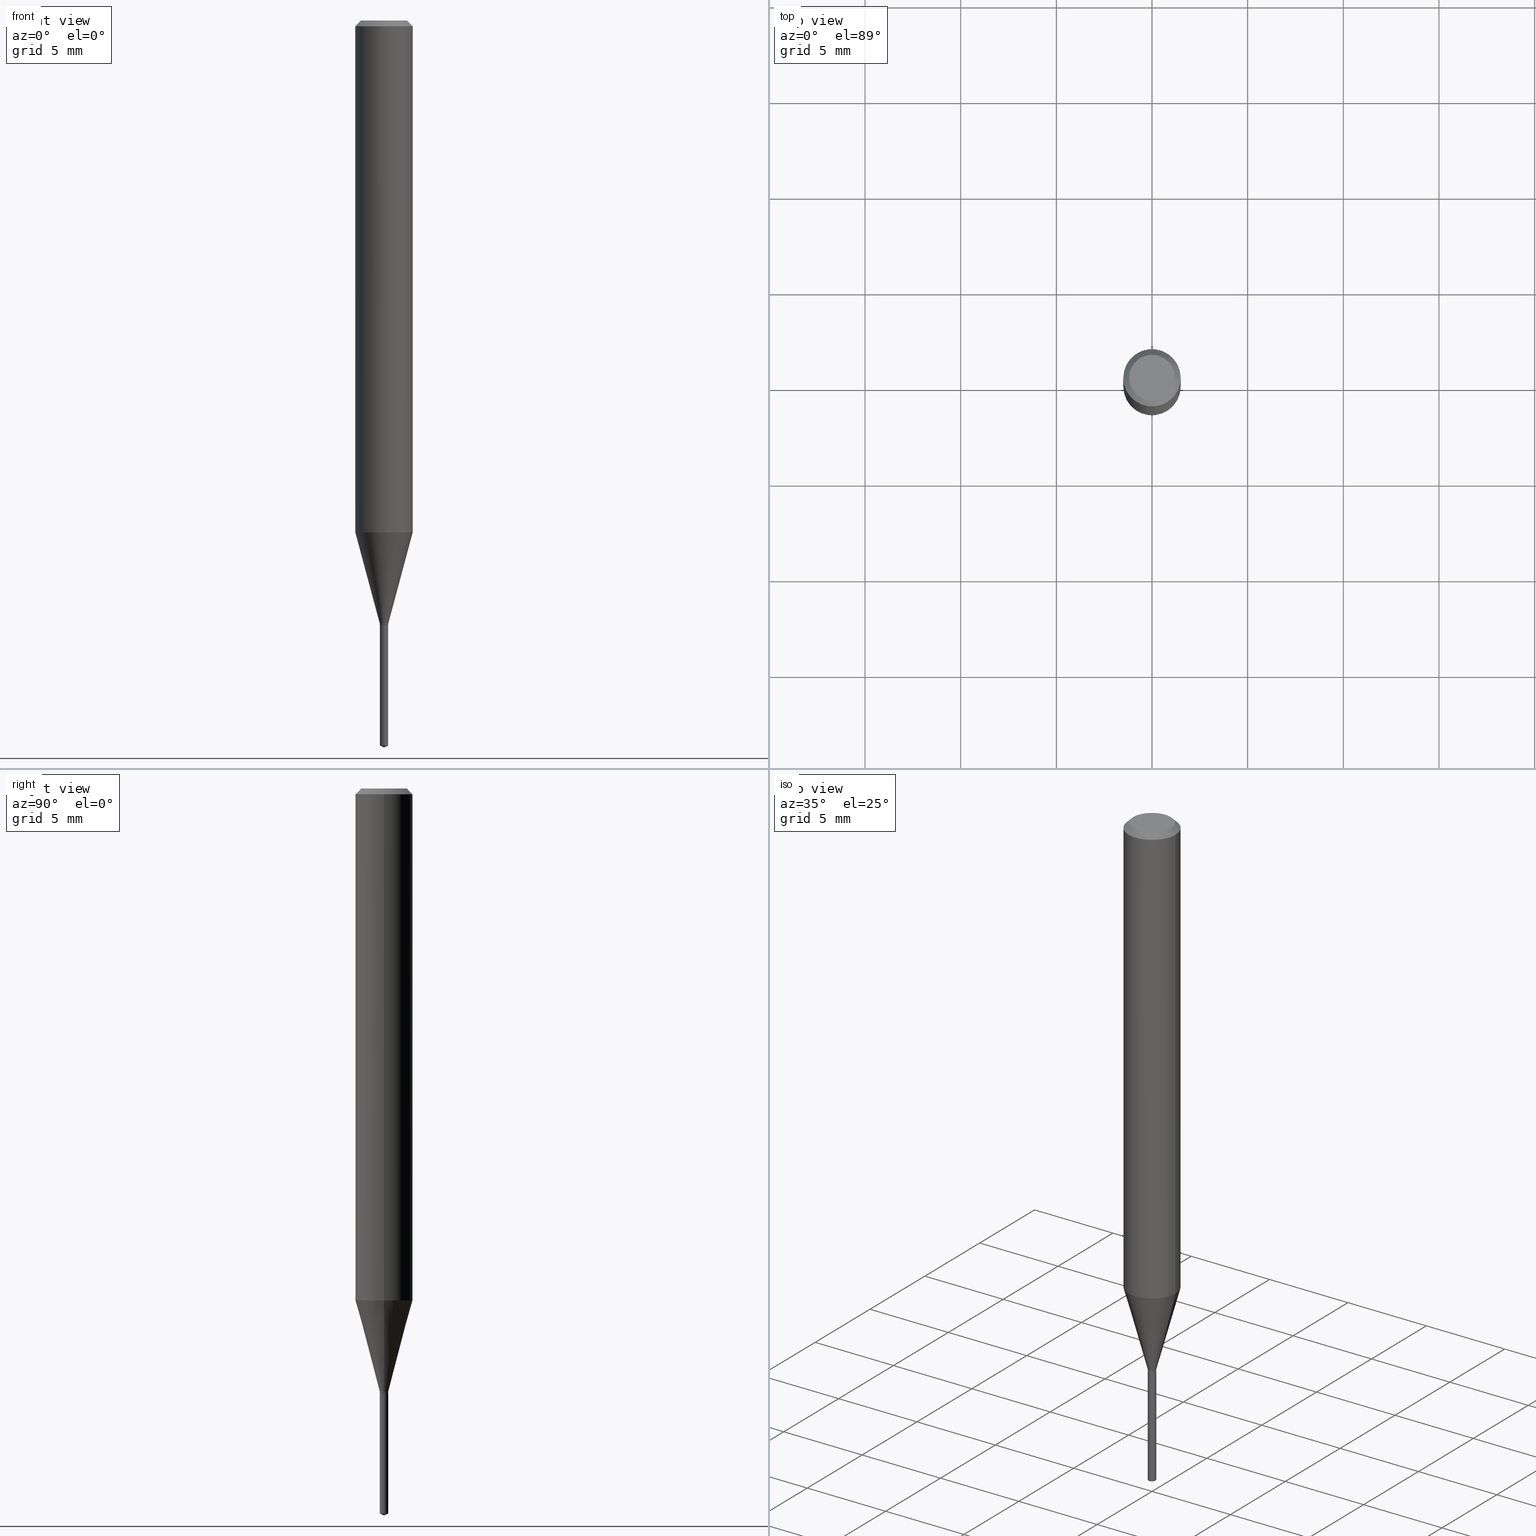
[diagram: canonical four-view strip — front | top / right | iso, engineering-drawing reading convention]
A machine part, canonical four-view strip (front | top / right | iso — engineering-drawing reading convention). The complete STEP part file that produces these views, byte-faithful:
ISO-10303-21;
HEADER;
FILE_DESCRIPTION (( 'STEP AP203' ),
    '1' );
FILE_NAME ('07419.STEP',
    '2024-04-23T21:14:50',
    ( '' ),
    ( '' ),
    'SwSTEP 2.0',
    'SolidWorks 2023',
    '' );
FILE_SCHEMA (( 'CONFIG_CONTROL_DESIGN' ));
ENDSEC;

DATA;
#1 = DIRECTION ( 'NONE',  ( 1.000000000000000000, -6.982962677686266711E-15, 0.000000000000000000 ) ) ;
#2 = LINE ( 'NONE', #423, #140 ) ;
#3 = ORIENTED_EDGE ( 'NONE', *, *, #326, .T. ) ;
#4 = CC_DESIGN_DATE_AND_TIME_ASSIGNMENT ( #94, #442, ( #283 ) ) ;
#5 = DIRECTION ( 'NONE',  ( 1.000000000000000000, -6.982962677686226479E-15, 0.000000000000000000 ) ) ;
#6 = AXIS2_PLACEMENT_3D ( 'NONE', #51, #431, #156 ) ;
#7 = PLANE ( 'NONE',  #299 ) ;
#8 = PLANE ( 'NONE',  #183 ) ;
#9 = MANIFOLD_SOLID_BREP ( 'Body-Move/Copy2[1]', #392 ) ;
#10 = DIRECTION ( 'NONE',  ( -1.000000000000000000, 6.982962677686266711E-15, 0.000000000000000000 ) ) ;
#11 = DIRECTION ( 'NONE',  ( 1.000000000000000000, -6.982962677686220957E-15, 0.000000000000000000 ) ) ;
#12 = DIRECTION ( 'NONE',  ( -0.7071067811866191821, 7.493145998870612907E-15, 0.7071067811864758523 ) ) ;
#13 = APPLICATION_CONTEXT ( 'configuration controlled 3d designs of mechanical parts and assemblies' ) ;
#14 = ORIENTED_EDGE ( 'NONE', *, *, #390, .F. ) ;
#15 = DIRECTION ( 'NONE',  ( -2.445468806185136877E-29, 3.491481338843145188E-15, 1.000000000000000000 ) ) ;
#16 = CIRCLE ( 'NONE', #6, 0.008149999999999999259 ) ;
#17 = AXIS2_PLACEMENT_3D ( 'NONE', #22, #134, #168 ) ;
#18 = VERTEX_POINT ( 'NONE', #365 ) ;
#19 = APPLICATION_PROTOCOL_DEFINITION ( 'international standard', 'config_control_design', 1994, #187 ) ;
#20 = APPROVAL_ROLE ( '' ) ;
#21 = VECTOR ( 'NONE', #234, 39.37007874015748143 ) ;
#22 = CARTESIAN_POINT ( 'NONE',  ( 0.000000000000000000, 0.000000000000000000, 0.000000000000000000 ) ) ;
#23 = DIRECTION ( 'NONE',  ( 1.000000000000000000, -6.982962677686220957E-15, 0.000000000000000000 ) ) ;
#24 = ADVANCED_FACE ( 'NONE', ( #257 ), #27, .T. ) ;
#25 = ORIENTED_EDGE ( 'NONE', *, *, #112, .T. ) ;
#26 = CONICAL_SURFACE ( 'NONE', #261, 0.05904999999999999832, 0.7853981633974452814 ) ;
#27 = CYLINDRICAL_SURFACE ( 'NONE', #244, 0.008650000000000001438 ) ;
#28 = CALENDAR_DATE ( 2024, 23, 4 ) ;
#29 = ORIENTED_EDGE ( 'NONE', *, *, #92, .F. ) ;
#30 = EDGE_CURVE ( 'NONE', #188, #321, #433, .T. ) ;
#31 = DIRECTION ( 'NONE',  ( -2.445468806185136597E-29, 3.491481338843145583E-15, 1.000000000000000000 ) ) ;
#32 = PERSON_AND_ORGANIZATION ( #322, #438 ) ;
#33 = PLANE ( 'NONE',  #292 ) ;
#34 = ORIENTED_EDGE ( 'NONE', *, *, #247, .T. ) ;
#35 = DIRECTION ( 'NONE',  ( -2.433949354103485076E-29, 3.507977849870565923E-15, 1.000000000000000000 ) ) ;
#36 = DIRECTION ( 'NONE',  ( -6.982962677686266711E-15, -1.000000000000000000, 0.000000000000000000 ) ) ;
#37 = CIRCLE ( 'NONE', #48, 0.05904999999999999832 ) ;
#38 = ORIENTED_EDGE ( 'NONE', *, *, #272, .F. ) ;
#39 = LINE ( 'NONE', #336, #470 ) ;
#40 = ADVANCED_BREP_SHAPE_REPRESENTATION ( '07419', ( #9, #327, #17 ), #224 ) ;
#41 = EDGE_LOOP ( 'NONE', ( #38, #415, #65, #110 ) ) ;
#42 = FACE_OUTER_BOUND ( 'NONE', #476, .T. ) ;
#43 = CARTESIAN_POINT ( 'NONE',  ( 0.05904999999999999832, -4.535783407291118600E-16, -0.01181000000000007218 ) ) ;
#44 = EDGE_CURVE ( 'NONE', #288, #135, #437, .T. ) ;
#45 = CARTESIAN_POINT ( 'NONE',  ( 3.670345667395058439E-29, -5.207239042452925869E-15, -1.496099999999999985 ) ) ;
#46 = DIRECTION ( 'NONE',  ( 1.000000000000000000, -6.982962677686226479E-15, 0.000000000000000000 ) ) ;
#47 = CARTESIAN_POINT ( 'NONE',  ( 0.008649999999999999703, -4.402408820147322827E-15, -1.243600000000000039 ) ) ;
#48 = AXIS2_PLACEMENT_3D ( 'NONE', #185, #194, #1 ) ;
#49 = DIRECTION ( 'NONE',  ( 2.445468806185136597E-29, -3.491481338843145583E-15, -1.000000000000000000 ) ) ;
#50 = VECTOR ( 'NONE', #114, 39.37007874015748143 ) ;
#51 = CARTESIAN_POINT ( 'NONE',  ( 3.042407741774928155E-29, -4.343751933654757151E-15, -1.244099999999999984 ) ) ;
#52 = EDGE_CURVE ( 'NONE', #135, #288, #473, .T. ) ;
#53 = LINE ( 'NONE', #190, #128 ) ;
#54 = CYLINDRICAL_SURFACE ( 'NONE', #434, 0.05905000000000006771 ) ;
#55 = PERSON_AND_ORGANIZATION ( #322, #438 ) ;
#56 = DIMENSIONAL_EXPONENTS ( 1.000000000000000000, 0.000000000000000000, 0.000000000000000000, 0.000000000000000000, 0.000000000000000000, 0.000000000000000000, 0.000000000000000000 ) ;
#57 = DIRECTION ( 'NONE',  ( 1.000000000000000000, -6.982962677686226479E-15, 0.000000000000000000 ) ) ;
#58 = ORIENTED_EDGE ( 'NONE', *, *, #157, .F. ) ;
#59 = DATE_TIME_ROLE ( 'classification_date' ) ;
#60 = VERTEX_POINT ( 'NONE', #181 ) ;
#61 = CONICAL_SURFACE ( 'NONE', #207, 0.008649999999999999703, 0.2617993877991500740 ) ;
#62 = APPROVAL_PERSON_ORGANIZATION ( #90, #362, #20 ) ;
#63 = EDGE_CURVE ( 'NONE', #451, #60, #105, .T. ) ;
#64 = DIRECTION ( 'NONE',  ( 1.000000000000000000, -6.982962677686265133E-15, 0.000000000000000000 ) ) ;
#65 = ORIENTED_EDGE ( 'NONE', *, *, #471, .T. ) ;
#66 = APPROVAL_ROLE ( '' ) ;
#67 = EDGE_CURVE ( 'NONE', #154, #332, #385, .T. ) ;
#68 = ORIENTED_EDGE ( 'NONE', *, *, #67, .T. ) ;
#69 = ORIENTED_EDGE ( 'NONE', *, *, #96, .F. ) ;
#70 = DATE_AND_TIME ( #482, #106 ) ;
#71 = VERTEX_POINT ( 'NONE', #141 ) ;
#72 = ORIENTED_EDGE ( 'NONE', *, *, #456, .T. ) ;
#73 = ORIENTED_EDGE ( 'NONE', *, *, #136, .F. ) ;
#74 = LINE ( 'NONE', #119, #279 ) ;
#75 = AXIS2_PLACEMENT_3D ( 'NONE', #86, #303, #78 ) ;
#76 = EDGE_LOOP ( 'NONE', ( #450, #337, #311, #179 ) ) ;
#77 = AXIS2_PLACEMENT_3D ( 'NONE', #258, #376, #294 ) ;
#78 = DIRECTION ( 'NONE',  ( 1.000000000000000000, -6.982962677686266711E-15, 4.876176775795935793E-29 ) ) ;
#79 = LINE ( 'NONE', #340, #132 ) ;
#80 = ADVANCED_FACE ( 'NONE', ( #102 ), #98, .T. ) ;
#81 = CARTESIAN_POINT ( 'NONE',  ( 0.000000000000000000, 0.000000000000000000, 0.000000000000000000 ) ) ;
#82 = FACE_OUTER_BOUND ( 'NONE', #129, .T. ) ;
#83 = DIRECTION ( 'NONE',  ( 1.000000000000000000, -6.982962677686220957E-15, 0.000000000000000000 ) ) ;
#84 = DIRECTION ( 'NONE',  ( -2.445468806185136597E-29, 3.491481338843145583E-15, 1.000000000000000000 ) ) ;
#85 = EDGE_CURVE ( 'NONE', #250, #489, #126, .T. ) ;
#86 = CARTESIAN_POINT ( 'NONE',  ( 0.000000000000000000, 0.000000000000000000, 0.000000000000000000 ) ) ;
#87 = AXIS2_PLACEMENT_3D ( 'NONE', #425, #297, #83 ) ;
#88 = FACE_OUTER_BOUND ( 'NONE', #318, .T. ) ;
#89 = CARTESIAN_POINT ( 'NONE',  ( -0.008649999999999999703, -4.276878190936301888E-15, -1.243600000000000039 ) ) ;
#90 = PERSON_AND_ORGANIZATION ( #322, #438 ) ;
#91 = AXIS2_PLACEMENT_3D ( 'NONE', #237, #162, #469 ) ;
#92 = EDGE_CURVE ( 'NONE', #188, #154, #142, .T. ) ;
#93 = APPROVAL_STATUS ( 'not_yet_approved' ) ;
#94 = DATE_AND_TIME ( #170, #446 ) ;
#95 = DATE_AND_TIME ( #28, #309 ) ;
#96 = EDGE_CURVE ( 'NONE', #277, #71, #16, .T. ) ;
#97 = CARTESIAN_POINT ( 'NONE',  ( 0.008149999999999999259, -4.400663079477900534E-15, -1.244099999999999984 ) ) ;
#98 = CONICAL_SURFACE ( 'NONE', #454, 0.008149999999999999259, 0.7853981633975496424 ) ;
#99 = CC_DESIGN_APPROVAL ( #362, ( #146 ) ) ;
#100 = ORIENTED_EDGE ( 'NONE', *, *, #165, .T. ) ;
#101 = DIRECTION ( 'NONE',  ( -2.433949354103485076E-29, 3.507977849870565923E-15, 1.000000000000000000 ) ) ;
#102 = FACE_OUTER_BOUND ( 'NONE', #76, .T. ) ;
#103 = ORIENTED_EDGE ( 'NONE', *, *, #121, .T. ) ;
#104 = VERTEX_POINT ( 'NONE', #461 ) ;
#105 = CIRCLE ( 'NONE', #445, 0.05904999999999999832 ) ;
#106 = LOCAL_TIME ( 17, 14, 50.00000000000000000, #180 ) ;
#107 = ORIENTED_EDGE ( 'NONE', *, *, #436, .T. ) ;
#108 = ORIENTED_EDGE ( 'NONE', *, *, #449, .T. ) ;
#109 = ORIENTED_EDGE ( 'NONE', *, *, #52, .T. ) ;
#110 = ORIENTED_EDGE ( 'NONE', *, *, #44, .F. ) ;
#111 = FACE_OUTER_BOUND ( 'NONE', #147, .T. ) ;
#112 = EDGE_CURVE ( 'NONE', #135, #377, #113, .T. ) ;
#113 = LINE ( 'NONE', #300, #115 ) ;
#114 = DIRECTION ( 'NONE',  ( -2.445468806185136877E-29, 3.491481338843145188E-15, 1.000000000000000000 ) ) ;
#115 = VECTOR ( 'NONE', #341, 39.37007874015748143 ) ;
#116 = AXIS2_PLACEMENT_3D ( 'NONE', #160, #49, #10 ) ;
#117 = DIRECTION ( 'NONE',  ( -2.445468806185136597E-29, 3.491481338843145583E-15, 1.000000000000000000 ) ) ;
#118 = CARTESIAN_POINT ( 'NONE',  ( 6.146194664328519809E-17, 0.008649999999995657690, -1.244099999999999984 ) ) ;
#119 = CARTESIAN_POINT ( 'NONE',  ( 6.146194664327909674E-17, 0.008649999999995657690, -1.244099999999999984 ) ) ;
#120 = DIRECTION ( 'NONE',  ( -2.445468806185136877E-29, 3.491481338843145188E-15, 1.000000000000000000 ) ) ;
#121 = EDGE_CURVE ( 'NONE', #447, #321, #464, .T. ) ;
#122 = DIRECTION ( 'NONE',  ( -2.438088387897960049E-29, 3.491481338843145188E-15, 1.000000000000000000 ) ) ;
#123 = DIRECTION ( 'NONE',  ( -6.982962677686265133E-15, -1.000000000000000000, 0.000000000000000000 ) ) ;
#124 = AXIS2_PLACEMENT_3D ( 'NONE', #480, #31, #254 ) ;
#125 = CARTESIAN_POINT ( 'NONE',  ( 0.008649999999999999703, -4.395076709335750145E-15, -1.241499999999999826 ) ) ;
#126 = CIRCLE ( 'NONE', #251, 0.05905000000000013016 ) ;
#127 = DIRECTION ( 'NONE',  ( -2.433949354103485076E-29, 3.507977849870565923E-15, 1.000000000000000000 ) ) ;
#128 = VECTOR ( 'NONE', #15, 39.37007874015748143 ) ;
#129 = EDGE_LOOP ( 'NONE', ( #256, #108, #354, #368 ) ) ;
#130 = COORDINATED_UNIVERSAL_TIME_OFFSET ( 5, 0, .BEHIND. ) ;
#131 = APPROVAL ( #93, 'UNSPECIFIED' ) ;
#132 = VECTOR ( 'NONE', #120, 39.37007874015748143 ) ;
#133 = CC_DESIGN_APPROVAL ( #131, ( #283 ) ) ;
#134 = DIRECTION ( 'NONE',  ( 0.000000000000000000, 0.000000000000000000, 1.000000000000000000 ) ) ;
#135 = VERTEX_POINT ( 'NONE', #47 ) ;
#136 = EDGE_CURVE ( 'NONE', #321, #332, #74, .T. ) ;
#137 = EDGE_LOOP ( 'NONE', ( #145, #107, #371 ) ) ;
#138 = EDGE_LOOP ( 'NONE', ( #144, #404, #316, #331 ) ) ;
#139 = CONICAL_SURFACE ( 'NONE', #192, 84.42940631927376671, 1.134464013796313342 ) ;
#140 = VECTOR ( 'NONE', #227, 39.37007874015747433 ) ;
#141 = CARTESIAN_POINT ( 'NONE',  ( 0.008149999999999999259, -4.400663079477900534E-15, -1.244099999999999984 ) ) ;
#142 = LINE ( 'NONE', #287, #153 ) ;
#143 = CALENDAR_DATE ( 2024, 23, 4 ) ;
#144 = ORIENTED_EDGE ( 'NONE', *, *, #165, .F. ) ;
#145 = ORIENTED_EDGE ( 'NONE', *, *, #121, .F. ) ;
#146 = PRODUCT_DEFINITION_FORMATION_WITH_SPECIFIED_SOURCE ( 'ANY', '', #315, .NOT_KNOWN. ) ;
#147 = EDGE_LOOP ( 'NONE', ( #177, #103, #212 ) ) ;
#148 = ADVANCED_FACE ( 'NONE', ( #269 ), #150, .T. ) ;
#149 = ORIENTED_EDGE ( 'NONE', *, *, #199, .F. ) ;
#150 = CYLINDRICAL_SURFACE ( 'NONE', #75, 0.008649999999999999703 ) ;
#151 = FACE_OUTER_BOUND ( 'NONE', #41, .T. ) ;
#152 = DIRECTION ( 'NONE',  ( -2.445468806185136597E-29, 3.491481338843145583E-15, 1.000000000000000000 ) ) ;
#153 = VECTOR ( 'NONE', #448, 39.37007874015748143 ) ;
#154 = VERTEX_POINT ( 'NONE', #189 ) ;
#155 = CIRCLE ( 'NONE', #353, 0.008649999999999999703 ) ;
#156 = DIRECTION ( 'NONE',  ( 1.000000000000000000, -6.982962677686220957E-15, 0.000000000000000000 ) ) ;
#157 = EDGE_CURVE ( 'NONE', #60, #451, #37, .T. ) ;
#158 = CARTESIAN_POINT ( 'NONE',  ( 3.042407741774928155E-29, -4.343751933654757151E-15, -1.244099999999999984 ) ) ;
#159 = FACE_OUTER_BOUND ( 'NONE', #367, .T. ) ;
#160 = CARTESIAN_POINT ( 'NONE',  ( 2.888098660104664204E-31, -4.123439461173780263E-17, -0.01181000000000007218 ) ) ;
#161 = CARTESIAN_POINT ( 'NONE',  ( 0.04724000000000000421, -3.852183633974369345E-16, -3.380025165621689721E-19 ) ) ;
#162 = DIRECTION ( 'NONE',  ( -2.433949354103485076E-29, 3.507977849870565923E-15, 1.000000000000000000 ) ) ;
#163 = CIRCLE ( 'NONE', #91, 0.008650000000000004907 ) ;
#164 = DIRECTION ( 'NONE',  ( 1.000000000000000000, -6.982962677686266711E-15, 4.876176775795936353E-29 ) ) ;
#165 = EDGE_CURVE ( 'NONE', #166, #451, #222, .T. ) ;
#166 = VERTEX_POINT ( 'NONE', #161 ) ;
#167 = PERSON_AND_ORGANIZATION ( #322, #438 ) ;
#168 = DIRECTION ( 'NONE',  ( 1.000000000000000000, 0.000000000000000000, 0.000000000000000000 ) ) ;
#169 = ADVANCED_FACE ( 'NONE', ( #159 ), #428, .T. ) ;
#170 = CALENDAR_DATE ( 2024, 23, 4 ) ;
#171 = LENGTH_MEASURE_WITH_UNIT ( LENGTH_MEASURE( 0.02539999999999999897 ), #407 );
#172 = CARTESIAN_POINT ( 'NONE',  ( 3.042407741774928155E-29, -4.343751933654757151E-15, -1.244099999999999984 ) ) ;
#173 = DIRECTION ( 'NONE',  ( -2.445468806185136597E-29, 3.491481338843145583E-15, 1.000000000000000000 ) ) ;
#174 = AXIS2_PLACEMENT_3D ( 'NONE', #455, #369, #285 ) ;
#175 = SECURITY_CLASSIFICATION ( '', '', #400 ) ;
#176 = ADVANCED_FACE ( 'NONE', ( #151 ), #313, .T. ) ;
#177 = ORIENTED_EDGE ( 'NONE', *, *, #436, .F. ) ;
#178 = APPROVAL_DATE_TIME ( #95, #362 ) ;
#179 = ORIENTED_EDGE ( 'NONE', *, *, #471, .F. ) ;
#180 = COORDINATED_UNIVERSAL_TIME_OFFSET ( 5, 0, .BEHIND. ) ;
#181 = CARTESIAN_POINT ( 'NONE',  ( -0.05904999999999999832, -1.440013032020331894E-15, -0.01181000000000007218 ) ) ;
#182 = APPROVAL ( #439, 'UNSPECIFIED' ) ;
#183 = AXIS2_PLACEMENT_3D ( 'NONE', #349, #122, #306 ) ;
#184 = DIRECTION ( 'NONE',  ( -2.445468806185136597E-29, 3.491481338843145583E-15, 1.000000000000000000 ) ) ;
#185 = CARTESIAN_POINT ( 'NONE',  ( 2.888098660104664204E-31, -4.123439461173780263E-17, -0.01181000000000007218 ) ) ;
#186 = LINE ( 'NONE', #429, #271 ) ;
#187 = APPLICATION_CONTEXT ( 'configuration controlled 3d designs of mechanical parts and assemblies' ) ;
#188 = VERTEX_POINT ( 'NONE', #228 ) ;
#189 = CARTESIAN_POINT ( 'NONE',  ( -6.040262716195577240E-17, -0.008650000000004345185, -1.244099999999999984 ) ) ;
#190 = CARTESIAN_POINT ( 'NONE',  ( -0.008649999999999999703, 6.146194664324866397E-17, -4.254878853070493339E-31 ) ) ;
#191 = CARTESIAN_POINT ( 'NONE',  ( 4.132873053354867254E-48, -5.900647395337818946E-34, -1.690012582823346072E-19 ) ) ;
#192 = AXIS2_PLACEMENT_3D ( 'NONE', #378, #345, #466 ) ;
#193 = AXIS2_PLACEMENT_3D ( 'NONE', #267, #127, #123 ) ;
#194 = DIRECTION ( 'NONE',  ( -2.445468806185136597E-29, 3.491481338843145583E-15, 1.000000000000000000 ) ) ;
#195 = DIRECTION ( 'NONE',  ( 1.000000000000000000, -6.982962677686226479E-15, 0.000000000000000000 ) ) ;
#196 = FACE_OUTER_BOUND ( 'NONE', #137, .T. ) ;
#197 = DIRECTION ( 'NONE',  ( 1.000000000000000000, -6.982962677686266711E-15, 4.876185090822587894E-29 ) ) ;
#198 = CARTESIAN_POINT ( 'NONE',  ( 0.000000000000000000, 0.000000000000000000, 0.000000000000000000 ) ) ;
#199 = EDGE_CURVE ( 'NONE', #377, #104, #343, .T. ) ;
#200 = CONICAL_SURFACE ( 'NONE', #116, 0.05904999999999999832, 0.7853981633974452814 ) ;
#201 = ORIENTED_EDGE ( 'NONE', *, *, #390, .T. ) ;
#202 =( NAMED_UNIT ( * ) SI_UNIT ( $, .STERADIAN. ) SOLID_ANGLE_UNIT ( ) );
#203 = DATE_AND_TIME ( #143, #487 ) ;
#204 = EDGE_CURVE ( 'NONE', #71, #277, #206, .T. ) ;
#205 = FACE_OUTER_BOUND ( 'NONE', #430, .T. ) ;
#206 = CIRCLE ( 'NONE', #239, 0.008149999999999999259 ) ;
#207 = AXIS2_PLACEMENT_3D ( 'NONE', #426, #298, #195 ) ;
#208 = ORIENTED_EDGE ( 'NONE', *, *, #375, .F. ) ;
#209 = ORIENTED_EDGE ( 'NONE', *, *, #85, .F. ) ;
#210 = ORIENTED_EDGE ( 'NONE', *, *, #319, .T. ) ;
#211 = CYLINDRICAL_SURFACE ( 'NONE', #344, 0.008650000000000001438 ) ;
#212 = ORIENTED_EDGE ( 'NONE', *, *, #30, .F. ) ;
#213 = CC_DESIGN_PERSON_AND_ORGANIZATION_ASSIGNMENT ( #358, #276, ( #283 ) ) ;
#214 = DIRECTION ( 'NONE',  ( -6.982962677686265133E-15, -1.000000000000000000, 0.000000000000000000 ) ) ;
#215 = COORDINATED_UNIVERSAL_TIME_OFFSET ( 5, 0, .BEHIND. ) ;
#216 = ORIENTED_EDGE ( 'NONE', *, *, #375, .T. ) ;
#217 = MECHANICAL_CONTEXT ( 'NONE', #13, 'mechanical' ) ;
#218 = ADVANCED_FACE ( 'NONE', ( #421 ), #231, .T. ) ;
#219 = ORIENTED_EDGE ( 'NONE', *, *, #456, .F. ) ;
#220 = SHAPE_DEFINITION_REPRESENTATION ( #255, #40 ) ;
#221 = ORIENTED_EDGE ( 'NONE', *, *, #296, .T. ) ;
#222 = LINE ( 'NONE', #263, #411 ) ;
#223 = CLOSED_SHELL ( 'NONE', ( #80, #289, #169, #346, #148, #218, #305, #440, #382, #265, #240, #176 ) ) ;
#224 =( GEOMETRIC_REPRESENTATION_CONTEXT ( 3 ) GLOBAL_UNCERTAINTY_ASSIGNED_CONTEXT ( ( #357 ) ) GLOBAL_UNIT_ASSIGNED_CONTEXT ( ( #320, #329, #202 ) ) REPRESENTATION_CONTEXT ( 'NONE', 'WORKASPACE' ) );
#225 = CARTESIAN_POINT ( 'NONE',  ( 0.05905000000000013016, -4.090286586478981149E-15, -1.053404639298528345 ) ) ;
#226 = DIRECTION ( 'NONE',  ( 1.000000000000000000, -6.982962677686266711E-15, 4.876176775795935793E-29 ) ) ;
#227 = DIRECTION ( 'NONE',  ( -0.2588190451025213501, 5.211531920934551042E-15, 0.9659258262890682012 ) ) ;
#228 = CARTESIAN_POINT ( 'NONE',  ( -6.040262716194978199E-17, -0.008650000000005219486, -1.492066438756959101 ) ) ;
#229 = CARTESIAN_POINT ( 'NONE',  ( 0.05905000000000006771, -4.123439461173745257E-16, 2.879382386107503723E-30 ) ) ;
#230 = CC_DESIGN_PERSON_AND_ORGANIZATION_ASSIGNMENT ( #167, #409, ( #175 ) ) ;
#231 = CYLINDRICAL_SURFACE ( 'NONE', #486, 0.008649999999999999703 ) ;
#232 = CARTESIAN_POINT ( 'NONE',  ( 0.008649999999999999703, -4.395076709335750145E-15, -1.241499999999999826 ) ) ;
#233 = AXIS2_PLACEMENT_3D ( 'NONE', #328, #248, #293 ) ;
#234 = DIRECTION ( 'NONE',  ( 6.439704144417020887E-15, 0.9063077870366510469, 0.4226182617406969988 ) ) ;
#235 = CARTESIAN_POINT ( 'NONE',  ( 3.036049522878846484E-29, -4.334674082173764544E-15, -1.241499999999999826 ) ) ;
#236 = ADVANCED_FACE ( 'NONE', ( #196 ), #139, .T. ) ;
#237 = CARTESIAN_POINT ( 'NONE',  ( 3.645945495226770738E-29, -5.213612708325456787E-15, -1.492066438756959101 ) ) ;
#238 = PERSON_AND_ORGANIZATION ( #322, #438 ) ;
#239 = AXIS2_PLACEMENT_3D ( 'NONE', #266, #184, #11 ) ;
#240 = ADVANCED_FACE ( 'NONE', ( #42 ), #8, .F. ) ;
#241 = ORIENTED_EDGE ( 'NONE', *, *, #30, .T. ) ;
#242 = APPROVAL_STATUS ( 'not_yet_approved' ) ;
#243 = LINE ( 'NONE', #97, #314 ) ;
#244 = AXIS2_PLACEMENT_3D ( 'NONE', #172, #372, #416 ) ;
#245 = DIRECTION ( 'NONE',  ( -2.445468806185136597E-29, 3.491481338843145583E-15, 1.000000000000000000 ) ) ;
#246 = ORIENTED_EDGE ( 'NONE', *, *, #479, .T. ) ;
#247 = EDGE_CURVE ( 'NONE', #377, #489, #468, .T. ) ;
#248 = DIRECTION ( 'NONE',  ( -2.433949354103485076E-29, 3.507977849870565923E-15, 1.000000000000000000 ) ) ;
#249 = PERSON_AND_ORGANIZATION_ROLE ( 'creator' ) ;
#250 = VERTEX_POINT ( 'NONE', #374 ) ;
#251 = AXIS2_PLACEMENT_3D ( 'NONE', #406, #408, #64 ) ;
#252 = AXIS2_PLACEMENT_3D ( 'NONE', #462, #347, #197 ) ;
#253 = EDGE_CURVE ( 'NONE', #18, #60, #39, .T. ) ;
#254 = DIRECTION ( 'NONE',  ( 1.000000000000000000, -6.982962677686282488E-15, 0.000000000000000000 ) ) ;
#255 = PRODUCT_DEFINITION_SHAPE ( 'NONE', 'NONE',  #283 ) ;
#256 = ORIENTED_EDGE ( 'NONE', *, *, #199, .T. ) ;
#257 = FACE_OUTER_BOUND ( 'NONE', #417, .T. ) ;
#258 = CARTESIAN_POINT ( 'NONE',  ( -9.216901474160064469E-28, 1.328816018163103804E-13, 37.87397874015748300 ) ) ;
#259 = DIRECTION ( 'NONE',  ( -2.445468806185136597E-29, 3.491481338843145583E-15, 1.000000000000000000 ) ) ;
#260 = CARTESIAN_POINT ( 'NONE',  ( 3.641431628674223535E-29, -5.248285661191353441E-15, -1.496099999999999985 ) ) ;
#261 = AXIS2_PLACEMENT_3D ( 'NONE', #381, #301, #350 ) ;
#262 = ORIENTED_EDGE ( 'NONE', *, *, #356, .T. ) ;
#263 = CARTESIAN_POINT ( 'NONE',  ( 0.05904999999999999832, -4.463468013801466955E-16, -0.01181000000000007218 ) ) ;
#264 = FACE_OUTER_BOUND ( 'NONE', #138, .T. ) ;
#265 = ADVANCED_FACE ( 'NONE', ( #205 ), #33, .F. ) ;
#266 = CARTESIAN_POINT ( 'NONE',  ( 3.042407741774928155E-29, -4.343751933654757151E-15, -1.244099999999999984 ) ) ;
#267 = CARTESIAN_POINT ( 'NONE',  ( 3.042407741774928155E-29, -4.343751933654757151E-15, -1.244099999999999984 ) ) ;
#268 = DESIGN_CONTEXT ( 'detailed design', #187, 'design' ) ;
#269 = FACE_OUTER_BOUND ( 'NONE', #290, .T. ) ;
#270 = DIRECTION ( 'NONE',  ( 6.982962677686265922E-15, 1.000000000000000000, -3.507977849870566318E-15 ) ) ;
#271 = VECTOR ( 'NONE', #12, 39.37007874015748143 ) ;
#272 = EDGE_CURVE ( 'NONE', #277, #288, #186, .T. ) ;
#273 = CC_DESIGN_APPROVAL ( #182, ( #175 ) ) ;
#274 = DIRECTION ( 'NONE',  ( 0.2588190451025213501, 1.565188264969621968E-15, 0.9659258262890682012 ) ) ;
#275 = CARTESIAN_POINT ( 'NONE',  ( 3.641431628674223535E-29, -5.248285661191353441E-15, -1.496099999999999985 ) ) ;
#276 = PERSON_AND_ORGANIZATION_ROLE ( 'creator' ) ;
#277 = VERTEX_POINT ( 'NONE', #432 ) ;
#278 = PERSON_AND_ORGANIZATION ( #322, #438 ) ;
#279 = VECTOR ( 'NONE', #339, 39.37007874015748143 ) ;
#280 = CIRCLE ( 'NONE', #403, 0.05905000000000013016 ) ;
#281 = ORIENTED_EDGE ( 'NONE', *, *, #338, .F. ) ;
#282 = PERSON_AND_ORGANIZATION ( #322, #438 ) ;
#283 = PRODUCT_DEFINITION ( 'UNKNOWN', '', #146, #268 ) ;
#284 = CONICAL_SURFACE ( 'NONE', #361, 0.008649999999999999703, 0.2617993877991500740 ) ;
#285 = DIRECTION ( 'NONE',  ( 1.000000000000000000, -6.982962677686282488E-15, 0.000000000000000000 ) ) ;
#286 = CARTESIAN_POINT ( 'NONE',  ( 2.576068185695256609E-29, -3.677942640361607017E-15, -1.053404639298528345 ) ) ;
#287 = CARTESIAN_POINT ( 'NONE',  ( -6.040262716195579705E-17, -0.008650000000004346920, -1.244099999999999984 ) ) ;
#288 = VERTEX_POINT ( 'NONE', #89 ) ;
#289 = ADVANCED_FACE ( 'NONE', ( #88 ), #26, .T. ) ;
#290 = EDGE_LOOP ( 'NONE', ( #109, #201, #149, #330 ) ) ;
#291 = CARTESIAN_POINT ( 'NONE',  ( 3.645945495226770738E-29, -5.213612708325456787E-15, -1.492066438756959101 ) ) ;
#292 = AXIS2_PLACEMENT_3D ( 'NONE', #191, #399, #459 ) ;
#293 = DIRECTION ( 'NONE',  ( -6.982962677686265133E-15, -1.000000000000000000, 0.000000000000000000 ) ) ;
#294 = DIRECTION ( 'NONE',  ( -6.982962677686268288E-15, -1.000000000000000000, 3.520397390770477536E-15 ) ) ;
#295 = DIRECTION ( 'NONE',  ( -2.445468806185136597E-29, 3.491481338843145583E-15, 1.000000000000000000 ) ) ;
#296 = EDGE_CURVE ( 'NONE', #18, #166, #477, .T. ) ;
#297 = DIRECTION ( 'NONE',  ( -2.445468806185136597E-29, 3.491481338843145583E-15, 1.000000000000000000 ) ) ;
#298 = DIRECTION ( 'NONE',  ( -2.445468806185136597E-29, 3.491481338843145583E-15, 1.000000000000000000 ) ) ;
#299 = AXIS2_PLACEMENT_3D ( 'NONE', #158, #384, #270 ) ;
#300 = CARTESIAN_POINT ( 'NONE',  ( 0.008649999999999999703, -6.040262716198620517E-17, 4.217892911063484363E-31 ) ) ;
#301 = DIRECTION ( 'NONE',  ( 2.445468806185136597E-29, -3.491481338843145583E-15, -1.000000000000000000 ) ) ;
#302 = APPROVAL_DATE_TIME ( #370, #182 ) ;
#303 = DIRECTION ( 'NONE',  ( -2.445468806185136597E-29, 3.491481338843145583E-15, 1.000000000000000000 ) ) ;
#304 = DIRECTION ( 'NONE',  ( 1.000000000000000000, -6.982962677686266711E-15, 4.876185090822587894E-29 ) ) ;
#305 = ADVANCED_FACE ( 'NONE', ( #467 ), #61, .T. ) ;
#306 = DIRECTION ( 'NONE',  ( 1.000000000000000000, -6.982962677686265922E-15, 4.876176775795935793E-29 ) ) ;
#307 = CARTESIAN_POINT ( 'NONE',  ( 8.265746106709734507E-48, -1.180129479067563789E-33, -3.380025165646692144E-19 ) ) ;
#308 = AXIS2_PLACEMENT_3D ( 'NONE', #380, #117, #5 ) ;
#309 = LOCAL_TIME ( 17, 14, 50.00000000000000000, #441 ) ;
#310 = ORIENTED_EDGE ( 'NONE', *, *, #85, .T. ) ;
#311 = ORIENTED_EDGE ( 'NONE', *, *, #52, .F. ) ;
#312 = CC_DESIGN_PERSON_AND_ORGANIZATION_ASSIGNMENT ( #278, #394, ( #146 ) ) ;
#313 = CONICAL_SURFACE ( 'NONE', #87, 0.008149999999999999259, 0.7853981633975496424 ) ;
#314 = VECTOR ( 'NONE', #363, 39.37007874015748143 ) ;
#315 = PRODUCT ( '07419', '07419', '', ( #217 ) ) ;
#316 = ORIENTED_EDGE ( 'NONE', *, *, #253, .T. ) ;
#317 = COORDINATED_UNIVERSAL_TIME_OFFSET ( 5, 0, .BEHIND. ) ;
#318 = EDGE_LOOP ( 'NONE', ( #348, #100, #359, #444 ) ) ;
#319 = EDGE_CURVE ( 'NONE', #250, #60, #79, .T. ) ;
#320 =( CONVERSION_BASED_UNIT ( 'INCH', #171 ) LENGTH_UNIT ( ) NAMED_UNIT ( #56 ) );
#321 = VERTEX_POINT ( 'NONE', #465 ) ;
#322 = PERSON ( 'UNSPECIFIED', 'UNSPECIFIED', 'UNSPECIFIED', ('UNSPECIFIED'), ('UNSPECIFIED'), ('UNSPECIFIED') ) ;
#323 = AXIS2_PLACEMENT_3D ( 'NONE', #307, #152, #304 ) ;
#324 = CARTESIAN_POINT ( 'NONE',  ( 3.042407741774928155E-29, -4.343751933654757151E-15, -1.244099999999999984 ) ) ;
#325 = ORIENTED_EDGE ( 'NONE', *, *, #63, .F. ) ;
#326 = EDGE_CURVE ( 'NONE', #321, #188, #163, .T. ) ;
#327 = MANIFOLD_SOLID_BREP ( 'Body-Move/Copy2[2]', #223 ) ;
#328 = CARTESIAN_POINT ( 'NONE',  ( 3.042407741774928155E-29, -4.343751933654757151E-15, -1.244099999999999984 ) ) ;
#329 =( NAMED_UNIT ( * ) PLANE_ANGLE_UNIT ( ) SI_UNIT ( $, .RADIAN. ) );
#330 = ORIENTED_EDGE ( 'NONE', *, *, #112, .F. ) ;
#331 = ORIENTED_EDGE ( 'NONE', *, *, #157, .T. ) ;
#332 = VERTEX_POINT ( 'NONE', #118 ) ;
#333 = ORIENTED_EDGE ( 'NONE', *, *, #338, .T. ) ;
#334 = CC_DESIGN_SECURITY_CLASSIFICATION ( #175, ( #146 ) ) ;
#335 = FACE_OUTER_BOUND ( 'NONE', #373, .T. ) ;
#336 = CARTESIAN_POINT ( 'NONE',  ( -0.05904999999999999832, 3.711095515056362547E-16, -0.01181000000000007218 ) ) ;
#337 = ORIENTED_EDGE ( 'NONE', *, *, #272, .T. ) ;
#338 = EDGE_CURVE ( 'NONE', #332, #154, #478, .T. ) ;
#339 = DIRECTION ( 'NONE',  ( -2.433949354103485076E-29, 3.507977849870566318E-15, 1.000000000000000000 ) ) ;
#340 = CARTESIAN_POINT ( 'NONE',  ( -0.05905000000000006771, 4.195754854663396409E-16, -2.904631170795525045E-30 ) ) ;
#341 = DIRECTION ( 'NONE',  ( -2.445468806185136877E-29, 3.491481338843145188E-15, 1.000000000000000000 ) ) ;
#342 = FACE_OUTER_BOUND ( 'NONE', #453, .T. ) ;
#343 = CIRCLE ( 'NONE', #308, 0.008649999999999999703 ) ;
#344 = AXIS2_PLACEMENT_3D ( 'NONE', #324, #101, #36 ) ;
#345 = DIRECTION ( 'NONE',  ( -2.433949354103485076E-29, 3.507977849870565923E-15, 1.000000000000000000 ) ) ;
#346 = ADVANCED_FACE ( 'NONE', ( #82 ), #284, .T. ) ;
#347 = DIRECTION ( 'NONE',  ( -2.445468806185136597E-29, 3.491481338843145583E-15, 1.000000000000000000 ) ) ;
#348 = ORIENTED_EDGE ( 'NONE', *, *, #356, .F. ) ;
#349 = CARTESIAN_POINT ( 'NONE',  ( 3.042407741774928155E-29, -4.343751933654757151E-15, -1.244099999999999984 ) ) ;
#350 = DIRECTION ( 'NONE',  ( -1.000000000000000000, 6.982962677686266711E-15, 0.000000000000000000 ) ) ;
#351 = DIRECTION ( 'NONE',  ( -2.445468806185136597E-29, 3.491481338843145583E-15, 1.000000000000000000 ) ) ;
#352 = AXIS2_PLACEMENT_3D ( 'NONE', #291, #35, #214 ) ;
#353 = AXIS2_PLACEMENT_3D ( 'NONE', #443, #397, #57 ) ;
#354 = ORIENTED_EDGE ( 'NONE', *, *, #479, .F. ) ;
#355 = PERSON_AND_ORGANIZATION_ROLE ( 'design_owner' ) ;
#356 = EDGE_CURVE ( 'NONE', #166, #18, #424, .T. ) ;
#357 = UNCERTAINTY_MEASURE_WITH_UNIT (LENGTH_MEASURE( 1.000000000000000082E-05 ), #320, 'distance_accuracy_value', 'NONE');
#358 = PERSON_AND_ORGANIZATION ( #322, #438 ) ;
#359 = ORIENTED_EDGE ( 'NONE', *, *, #63, .T. ) ;
#360 = AXIS2_PLACEMENT_3D ( 'NONE', #81, #259, #387 ) ;
#361 = AXIS2_PLACEMENT_3D ( 'NONE', #235, #84, #46 ) ;
#362 = APPROVAL ( #242, 'UNSPECIFIED' ) ;
#363 = DIRECTION ( 'NONE',  ( 0.7071067811866191821, -2.468850131083007662E-15, 0.7071067811864758523 ) ) ;
#364 = DIRECTION ( 'NONE',  ( -2.445468806185136597E-29, 3.491481338843145583E-15, 1.000000000000000000 ) ) ;
#365 = CARTESIAN_POINT ( 'NONE',  ( -0.04724000000000000421, 3.504923541997677355E-16, -3.380025165670481712E-19 ) ) ;
#366 = PRODUCT_RELATED_PRODUCT_CATEGORY ( 'detail', '', ( #315 ) ) ;
#367 = EDGE_LOOP ( 'NONE', ( #246, #210, #325, #208 ) ) ;
#368 = ORIENTED_EDGE ( 'NONE', *, *, #247, .F. ) ;
#369 = DIRECTION ( 'NONE',  ( -2.445468806185136597E-29, 3.491481338843145583E-15, 1.000000000000000000 ) ) ;
#370 = DATE_AND_TIME ( #452, #474 ) ;
#371 = ORIENTED_EDGE ( 'NONE', *, *, #326, .F. ) ;
#372 = DIRECTION ( 'NONE',  ( -2.433949354103485076E-29, 3.507977849870565923E-15, 1.000000000000000000 ) ) ;
#373 = EDGE_LOOP ( 'NONE', ( #241, #420, #395, #29 ) ) ;
#374 = CARTESIAN_POINT ( 'NONE',  ( -0.05905000000000013016, -3.258367154895266735E-15, -1.053404639298528345 ) ) ;
#375 = EDGE_CURVE ( 'NONE', #489, #451, #388, .T. ) ;
#376 = DIRECTION ( 'NONE',  ( -2.433949354103485076E-29, 3.507977849870565923E-15, 1.000000000000000000 ) ) ;
#377 = VERTEX_POINT ( 'NONE', #232 ) ;
#378 = CARTESIAN_POINT ( 'NONE',  ( -9.216901474160064469E-28, 1.328816018163103804E-13, 37.87397874015748300 ) ) ;
#379 = LINE ( 'NONE', #275, #393 ) ;
#380 = CARTESIAN_POINT ( 'NONE',  ( 3.036049522878846484E-29, -4.334674082173764544E-15, -1.241499999999999826 ) ) ;
#381 = CARTESIAN_POINT ( 'NONE',  ( 2.888098660104664204E-31, -4.123439461173780263E-17, -0.01181000000000007218 ) ) ;
#382 = ADVANCED_FACE ( 'NONE', ( #264 ), #200, .T. ) ;
#383 = CARTESIAN_POINT ( 'NONE',  ( 0.000000000000000000, 0.000000000000000000, 0.000000000000000000 ) ) ;
#384 = DIRECTION ( 'NONE',  ( 2.433949354103484515E-29, -3.507977849870566318E-15, -1.000000000000000000 ) ) ;
#385 = CIRCLE ( 'NONE', #233, 0.008649999999999999703 ) ;
#386 = CONICAL_SURFACE ( 'NONE', #77, 84.42940631927376671, 1.134464013796313342 ) ;
#387 = DIRECTION ( 'NONE',  ( 1.000000000000000000, -6.982962677686266711E-15, 4.876176775795936353E-29 ) ) ;
#388 = LINE ( 'NONE', #229, #50 ) ;
#389 = FACE_OUTER_BOUND ( 'NONE', #460, .T. ) ;
#390 = EDGE_CURVE ( 'NONE', #288, #104, #53, .T. ) ;
#391 = ORIENTED_EDGE ( 'NONE', *, *, #92, .T. ) ;
#392 = CLOSED_SHELL ( 'NONE', ( #484, #472, #236, #24, #427 ) ) ;
#393 = VECTOR ( 'NONE', #435, 39.37007874015748143 ) ;
#394 = PERSON_AND_ORGANIZATION_ROLE ( 'design_supplier' ) ;
#395 = ORIENTED_EDGE ( 'NONE', *, *, #67, .F. ) ;
#396 = APPLICATION_PROTOCOL_DEFINITION ( 'international standard', 'config_control_design', 1994, #13 ) ;
#397 = DIRECTION ( 'NONE',  ( -2.445468806185136597E-29, 3.491481338843145583E-15, 1.000000000000000000 ) ) ;
#398 = ORIENTED_EDGE ( 'NONE', *, *, #449, .F. ) ;
#399 = DIRECTION ( 'NONE',  ( 2.438088387897960049E-29, -3.491481338843145188E-15, -1.000000000000000000 ) ) ;
#400 = SECURITY_CLASSIFICATION_LEVEL ( 'unclassified' ) ;
#401 = CC_DESIGN_PERSON_AND_ORGANIZATION_ASSIGNMENT ( #32, #355, ( #315 ) ) ;
#402 = EDGE_LOOP ( 'NONE', ( #398, #72, #34, #209 ) ) ;
#403 = AXIS2_PLACEMENT_3D ( 'NONE', #286, #245, #405 ) ;
#404 = ORIENTED_EDGE ( 'NONE', *, *, #296, .F. ) ;
#405 = DIRECTION ( 'NONE',  ( 1.000000000000000000, -6.982962677686265133E-15, 0.000000000000000000 ) ) ;
#406 = CARTESIAN_POINT ( 'NONE',  ( 2.576068185695256609E-29, -3.677942640361607017E-15, -1.053404639298528345 ) ) ;
#407 =( LENGTH_UNIT ( ) NAMED_UNIT ( * ) SI_UNIT ( $, .METRE. ) );
#408 = DIRECTION ( 'NONE',  ( -2.445468806185136597E-29, 3.491481338843145583E-15, 1.000000000000000000 ) ) ;
#409 = PERSON_AND_ORGANIZATION_ROLE ( 'classification_officer' ) ;
#410 = CC_DESIGN_PERSON_AND_ORGANIZATION_ASSIGNMENT ( #238, #249, ( #146 ) ) ;
#411 = VECTOR ( 'NONE', #458, 39.37007874015748143 ) ;
#412 = APPROVAL_PERSON_ORGANIZATION ( #282, #131, #475 ) ;
#413 = EDGE_LOOP ( 'NONE', ( #14, #481, #25, #219 ) ) ;
#414 = APPROVAL_DATE_TIME ( #203, #131 ) ;
#415 = ORIENTED_EDGE ( 'NONE', *, *, #96, .T. ) ;
#416 = DIRECTION ( 'NONE',  ( -6.982962677686266711E-15, -1.000000000000000000, 0.000000000000000000 ) ) ;
#417 = EDGE_LOOP ( 'NONE', ( #73, #3, #391, #281 ) ) ;
#418 = CC_DESIGN_DATE_AND_TIME_ASSIGNMENT ( #70, #59, ( #175 ) ) ;
#419 = CARTESIAN_POINT ( 'NONE',  ( 2.888098660104664204E-31, -4.123439461173780263E-17, -0.01181000000000007218 ) ) ;
#420 = ORIENTED_EDGE ( 'NONE', *, *, #136, .T. ) ;
#421 = FACE_OUTER_BOUND ( 'NONE', #413, .T. ) ;
#422 = VECTOR ( 'NONE', #274, 39.37007874015747433 ) ;
#423 = CARTESIAN_POINT ( 'NONE',  ( -0.008649999999999999703, -4.273212135530516336E-15, -1.241499999999999826 ) ) ;
#424 = CIRCLE ( 'NONE', #252, 0.04724000000000000421 ) ;
#425 = CARTESIAN_POINT ( 'NONE',  ( 3.042407741774928155E-29, -4.343751933654757151E-15, -1.244099999999999984 ) ) ;
#426 = CARTESIAN_POINT ( 'NONE',  ( 3.036049522878846484E-29, -4.334674082173764544E-15, -1.241499999999999826 ) ) ;
#427 = ADVANCED_FACE ( 'NONE', ( #342 ), #7, .F. ) ;
#428 = CYLINDRICAL_SURFACE ( 'NONE', #360, 0.05905000000000006771 ) ;
#429 = CARTESIAN_POINT ( 'NONE',  ( -0.008149999999999999259, -4.285842700690309053E-15, -1.244099999999999984 ) ) ;
#430 = EDGE_LOOP ( 'NONE', ( #221, #262 ) ) ;
#431 = DIRECTION ( 'NONE',  ( -2.445468806185136597E-29, 3.491481338843145583E-15, 1.000000000000000000 ) ) ;
#432 = CARTESIAN_POINT ( 'NONE',  ( -0.008149999999999999259, -4.283193473516197852E-15, -1.244099999999999984 ) ) ;
#433 = CIRCLE ( 'NONE', #352, 0.008650000000000004907 ) ;
#434 = AXIS2_PLACEMENT_3D ( 'NONE', #198, #351, #164 ) ;
#435 = DIRECTION ( 'NONE',  ( -6.328713451373367801E-15, -0.9063077870366481603, 0.4226182617407033271 ) ) ;
#436 = EDGE_CURVE ( 'NONE', #447, #188, #379, .T. ) ;
#437 = CIRCLE ( 'NONE', #174, 0.008649999999999999703 ) ;
#438 = ORGANIZATION ( 'UNSPECIFIED', 'UNSPECIFIED', '' ) ;
#439 = APPROVAL_STATUS ( 'not_yet_approved' ) ;
#440 = ADVANCED_FACE ( 'NONE', ( #389 ), #54, .T. ) ;
#441 = COORDINATED_UNIVERSAL_TIME_OFFSET ( 5, 0, .BEHIND. ) ;
#442 = DATE_TIME_ROLE ( 'creation_date' ) ;
#443 = CARTESIAN_POINT ( 'NONE',  ( 3.036049522878846484E-29, -4.334674082173764544E-15, -1.241499999999999826 ) ) ;
#444 = ORIENTED_EDGE ( 'NONE', *, *, #253, .F. ) ;
#445 = AXIS2_PLACEMENT_3D ( 'NONE', #419, #173, #488 ) ;
#446 = LOCAL_TIME ( 17, 14, 50.00000000000000000, #317 ) ;
#447 = VERTEX_POINT ( 'NONE', #260 ) ;
#448 = DIRECTION ( 'NONE',  ( -2.433949354103485076E-29, 3.507977849870566318E-15, 1.000000000000000000 ) ) ;
#449 = EDGE_CURVE ( 'NONE', #104, #250, #2, .T. ) ;
#450 = ORIENTED_EDGE ( 'NONE', *, *, #204, .T. ) ;
#451 = VERTEX_POINT ( 'NONE', #43 ) ;
#452 = CALENDAR_DATE ( 2024, 23, 4 ) ;
#453 = EDGE_LOOP ( 'NONE', ( #68, #333 ) ) ;
#454 = AXIS2_PLACEMENT_3D ( 'NONE', #457, #364, #23 ) ;
#455 = CARTESIAN_POINT ( 'NONE',  ( 3.041185007371835914E-29, -4.342006192985336437E-15, -1.243600000000000039 ) ) ;
#456 = EDGE_CURVE ( 'NONE', #104, #377, #155, .T. ) ;
#457 = CARTESIAN_POINT ( 'NONE',  ( 3.042407741774928155E-29, -4.343751933654757151E-15, -1.244099999999999984 ) ) ;
#458 = DIRECTION ( 'NONE',  ( 0.7071067811865453523, -7.319954787623248157E-15, -0.7071067811865496822 ) ) ;
#459 = DIRECTION ( 'NONE',  ( -1.000000000000000000, 6.982962677686265922E-15, -4.876176775795935793E-29 ) ) ;
#460 = EDGE_LOOP ( 'NONE', ( #485, #310, #216, #58 ) ) ;
#461 = CARTESIAN_POINT ( 'NONE',  ( -0.008649999999999999703, -4.276878190936301888E-15, -1.241499999999999826 ) ) ;
#462 = CARTESIAN_POINT ( 'NONE',  ( 8.265746106709734507E-48, -1.180129479067563789E-33, -3.380025165646692144E-19 ) ) ;
#463 = APPROVAL_PERSON_ORGANIZATION ( #55, #182, #66 ) ;
#464 = LINE ( 'NONE', #45, #21 ) ;
#465 = CARTESIAN_POINT ( 'NONE',  ( 6.146194664328514878E-17, 0.008649999999994790328, -1.492066438756959101 ) ) ;
#466 = DIRECTION ( 'NONE',  ( -6.982962677686268288E-15, -1.000000000000000000, 3.520397390770477536E-15 ) ) ;
#467 = FACE_OUTER_BOUND ( 'NONE', #402, .T. ) ;
#468 = LINE ( 'NONE', #125, #422 ) ;
#469 = DIRECTION ( 'NONE',  ( -6.982962677686265133E-15, -1.000000000000000000, 0.000000000000000000 ) ) ;
#470 = VECTOR ( 'NONE', #490, 39.37007874015748143 ) ;
#471 = EDGE_CURVE ( 'NONE', #71, #135, #243, .T. ) ;
#472 = ADVANCED_FACE ( 'NONE', ( #111 ), #386, .T. ) ;
#473 = CIRCLE ( 'NONE', #124, 0.008649999999999999703 ) ;
#474 = LOCAL_TIME ( 17, 14, 50.00000000000000000, #215 ) ;
#475 = APPROVAL_ROLE ( '' ) ;
#476 = EDGE_LOOP ( 'NONE', ( #483, #69 ) ) ;
#477 = CIRCLE ( 'NONE', #323, 0.04724000000000000421 ) ;
#478 = CIRCLE ( 'NONE', #193, 0.008649999999999999703 ) ;
#479 = EDGE_CURVE ( 'NONE', #489, #250, #280, .T. ) ;
#480 = CARTESIAN_POINT ( 'NONE',  ( 3.041185007371835914E-29, -4.342006192985336437E-15, -1.243600000000000039 ) ) ;
#481 = ORIENTED_EDGE ( 'NONE', *, *, #44, .T. ) ;
#482 = CALENDAR_DATE ( 2024, 23, 4 ) ;
#483 = ORIENTED_EDGE ( 'NONE', *, *, #204, .F. ) ;
#484 = ADVANCED_FACE ( 'NONE', ( #335 ), #211, .T. ) ;
#485 = ORIENTED_EDGE ( 'NONE', *, *, #319, .F. ) ;
#486 = AXIS2_PLACEMENT_3D ( 'NONE', #383, #295, #226 ) ;
#487 = LOCAL_TIME ( 17, 14, 50.00000000000000000, #130 ) ;
#488 = DIRECTION ( 'NONE',  ( 1.000000000000000000, -6.982962677686266711E-15, 0.000000000000000000 ) ) ;
#489 = VERTEX_POINT ( 'NONE', #225 ) ;
#490 = DIRECTION ( 'NONE',  ( -0.7071067811865453523, 2.468850131082234184E-15, -0.7071067811865496822 ) ) ;
ENDSEC;
END-ISO-10303-21;
